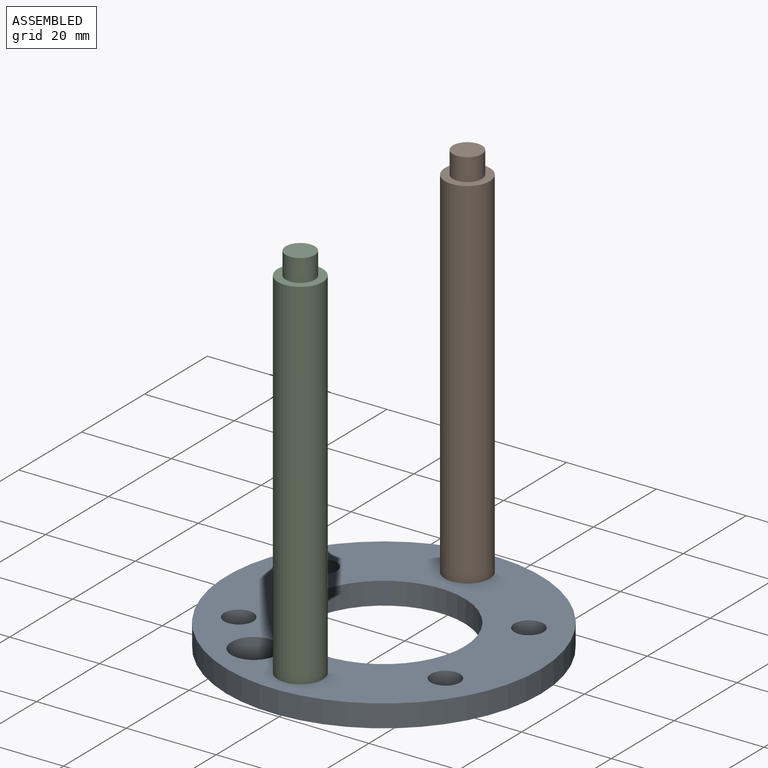
[diagram: assembled view]
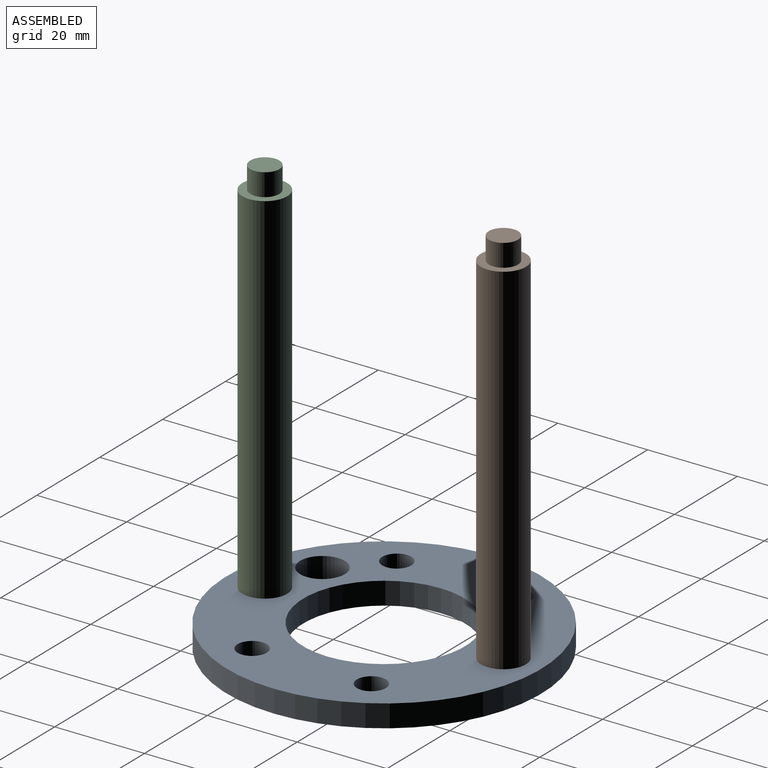
[diagram: assembled view, second angle]
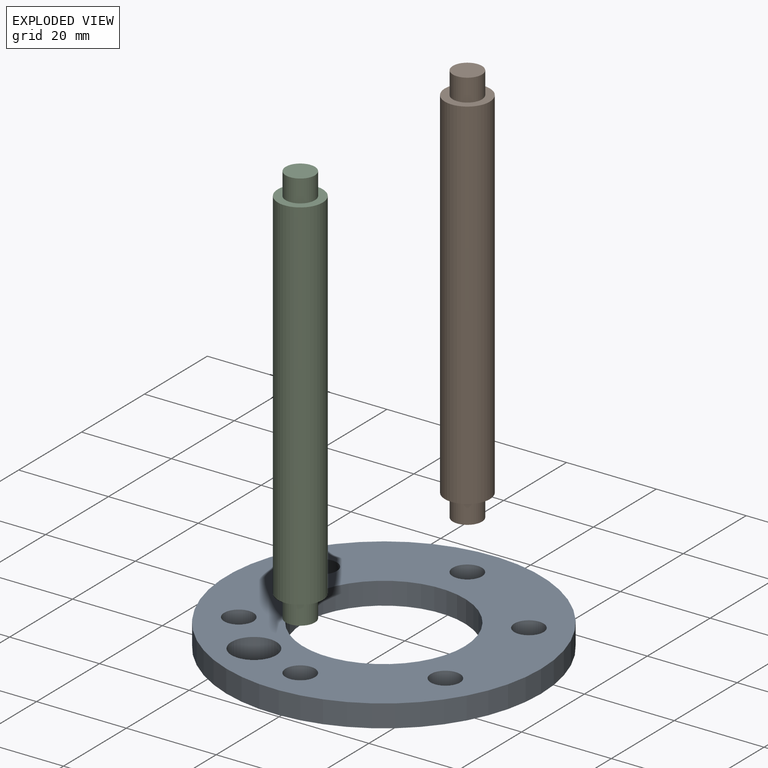
[diagram: exploded view]
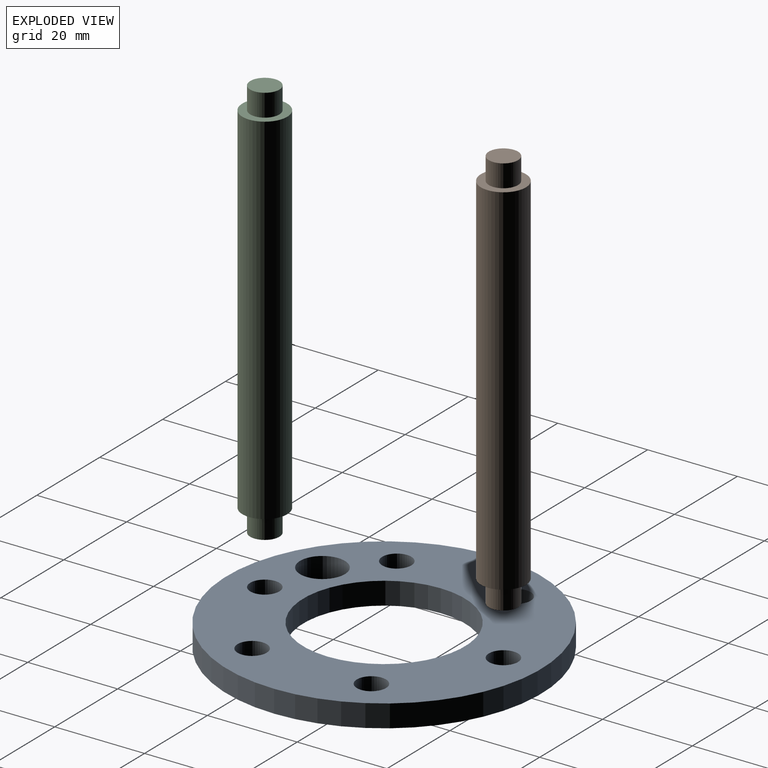
[diagram: exploded view, second angle]
ASSEMBLY  parts=3 mates=2
PART A: 11 faces, bbox 70x70x5 mm
  f0: cylinder r=3.25mm len=6.5mm, axis (0,0,-1), area 102.1mm2, adj f8,f9
  f1: cylinder r=3.25mm len=6.5mm, axis (0,0,-1), area 102.1mm2, adj f8,f9
  f2: cylinder r=3.25mm len=6.5mm, axis (0,0,-1), area 102.1mm2, adj f8,f9
  f3: cylinder r=3.25mm len=6.5mm, axis (0,0,-1), area 102.1mm2, adj f8,f9
  f4: cylinder r=3.25mm len=6.5mm, axis (0,0,-1), area 102.1mm2, adj f8,f9
  f5: cylinder r=3.25mm len=6.5mm, axis (0,0,-1), area 102.1mm2, adj f8,f9
  f6: cylinder r=18mm len=36mm, axis (0,0,-1), area 565.5mm2, adj f8,f9
  f7: cylinder r=35mm len=70mm, axis (0,0,-1), area 1099.6mm2, adj f8,f9
  f8: plane 70x70mm, normal (0,0,1), area 2552.9mm2, adj f0,f1,f2,f3,f4,f5,f6,f7
  f9: plane 70x70mm, normal (0,0,-1), area 2552.9mm2, adj f0,f1,f2,f3,f4,f5,f6,f7
  f10: cylinder r=5mm len=10mm, axis (0,0,1), area 157.1mm2, adj f8,f9
PART B: 7 faces, bbox 10x10x90 mm
  f0: cylinder r=3.25mm len=6.5mm, axis (0,0,-1), area 102.1mm2, adj f1,f4
  f1: plane 6.5x6.5mm, normal (0,0,-1), area 33.2mm2, adj f0
  f2: cylinder r=5mm len=80mm, axis (0,0,-1), area 2513.3mm2, adj f3,f4
  f3: plane 10x10mm, normal (0,0,1), area 45.4mm2, adj f2,f5
  f4: plane 10x10mm, normal (0,0,-1), area 45.4mm2, adj f0,f2
  f5: cylinder r=3.25mm len=6.5mm, axis (0,0,-1), area 102.1mm2, adj f3,f6
  f6: plane 6.5x6.5mm, normal (0,0,1), area 33.2mm2, adj f5
PART C: same geometry as B
PLACE A rot(axis=(1,0,0),180deg) t=(-19.07,-7.99,-27.59)mm
PLACE B t=(-19.07,18.58,-32.58)mm
PLACE C t=(-19.07,-34.56,-32.58)mm
MATE slider A.f3 <-> B.f0  axis (0,0,1) through (-19.07,18.58,-32.59)mm
MATE slider C.f0 <-> A.f0  axis (0,0,-1) through (-19.07,-34.56,-27.58)mm
